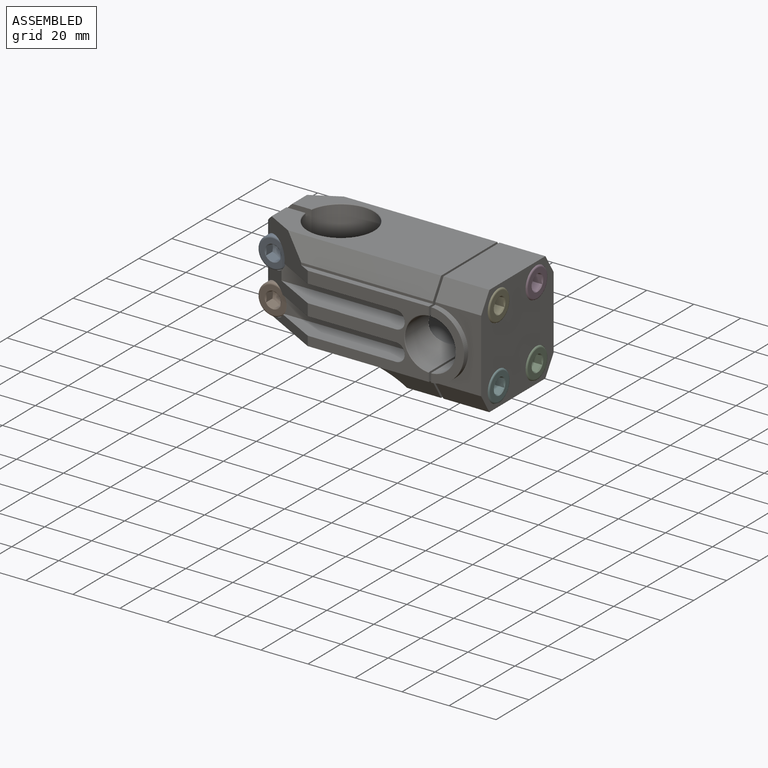
[diagram: assembled view]
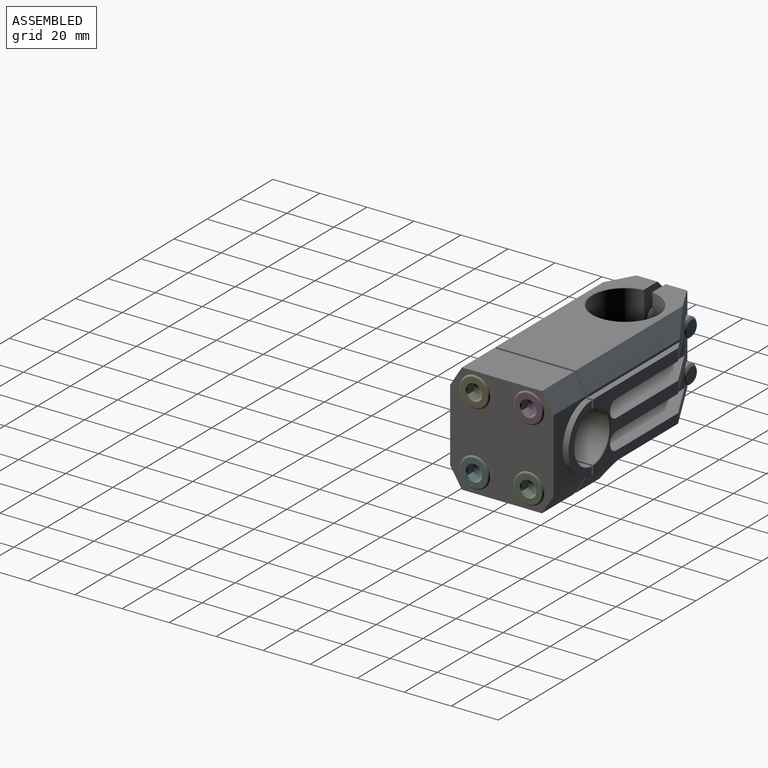
[diagram: assembled view, second angle]
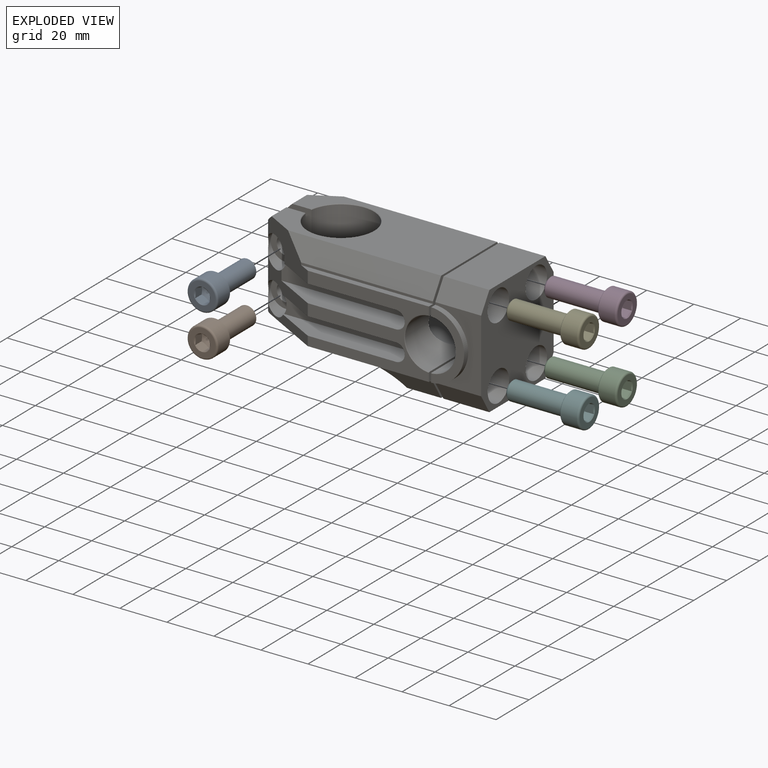
[diagram: exploded view]
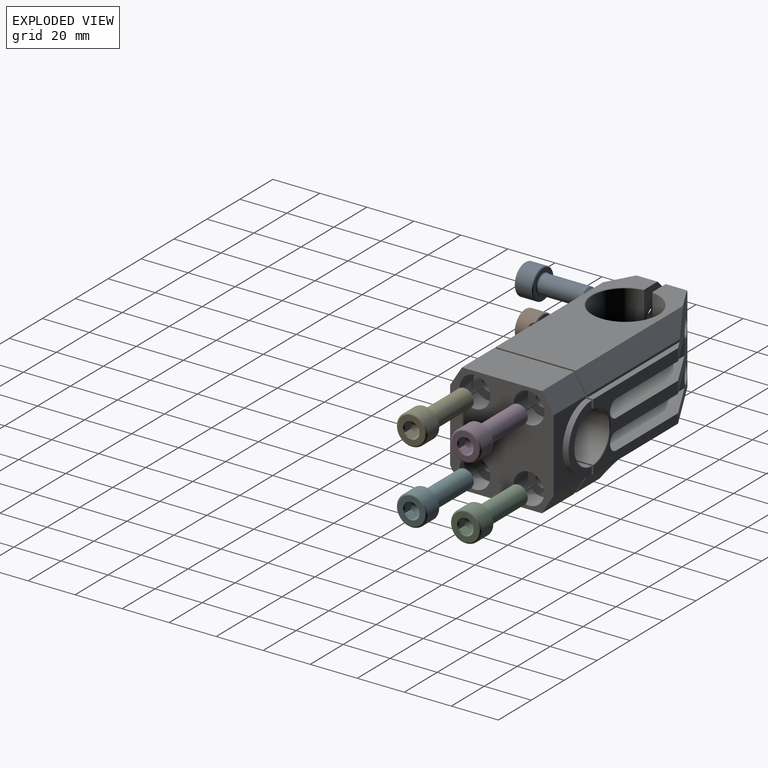
[diagram: exploded view, second angle]
FCSTD DOCUMENT  (FreeCAD 1.0R39285 (Git))
Label: tutorial
License: All rights reserved
LicenseURL: https://en.wikipedia.org/wiki/All_rights_reserved
objects: Sketcher::SketchObject×11, PartDesign::Pocket×9, App::Link×7, App::FeaturePython×7, PartDesign::Pad×2, PartDesign::Chamfer×2, PartDesign::Hole×2, Part::FeaturePython×2, App::VarSet×1, PartDesign::Mirrored×1, PartDesign::Body×1, App::DocumentObjectGroup×1, Assembly::JointGroup×1, Assembly::AssemblyObject×1
note: 72 computed .brp shape members not serialized (recipe doc carries the construction recipe); baked Part::Feature solids carry a one-line shape summary decoded from their .brp

FEATURE [Sketcher::SketchObject] Sketch
  ArcFitTolerance = 1e-06
  AttachmentSupport = -> [XZ_Plane]
  FullyConstrained = true
  MakeInternals = false
  MapMode = 5
  Placement = pos=(0,0,0) rot=(1,0,0;1.5708rad)
  expr: Constraints[18] = VarSet.Size
  expr: Constraints[19] = VarSet.Size + 20 mm
  sketch-geometry (7):
    g0: Circle CenterX=55 CenterY=0 CenterZ=0 NormalX=0 NormalY=0 NormalZ=1 AngleXU=0 Radius=10.75
    g1: LineSegment StartX=0 StartY=23.5 StartZ=0 EndX=75 EndY=23.5 EndZ=0
    g2: LineSegment StartX=75 StartY=23.5 StartZ=0 EndX=75 EndY=-23.5 EndZ=0
    g3: LineSegment StartX=75 StartY=-23.5 StartZ=0 EndX=0 EndY=-23.5 EndZ=0
    g4: LineSegment StartX=0 StartY=-23.5 StartZ=0 EndX=-27 EndY=-23.5 EndZ=0
    g5: LineSegment StartX=-27 StartY=-23.5 StartZ=0 EndX=-27 EndY=23.5 EndZ=0
    g6: LineSegment StartX=-27 StartY=23.5 StartZ=0 EndX=0 EndY=23.5 EndZ=0
  constraints (20):
    c: Diameter(g0) = 21.5
    c: PointOnObject(g0,g-1)
    c: PointOnObject(g1,g-2)
    c: Horizontal(g1)
    c: Coincident(g1,g2)
    c: Coincident(g2,g3)
    c: PointOnObject(g3,g-2)
    c: Horizontal(g3)
    c: Coincident(g3,g4)
    c: Horizontal(g4)
    c: Coincident(g4,g5)
    c: Vertical(g5)
    c: Coincident(g5,g6)
    c: Coincident(g6,g1)
    c: Horizontal(g6)
    c: Symmetric(g1,g2,g-1)
    c: DistanceY(g2,g2) = 47
    c: DistanceX(g6,g6) = 27
    c: DistanceX(g-1,g0) = 55
    c: Distance(g-2,g2) = 75
FEATURE [App::VarSet] VarSet
  Size = 55
FEATURE [PartDesign::Pad] Pad
  Direction = (0,-1,2e-16)
  Length = 22
  Length2 = 10
  Placement = pos=(0,0,0) rot=(1,0,0;1.5708rad)
  Profile = -> Sketch
  ReferenceAxis = -> Sketch [N_Axis]
  Refine = true
  Suppressed = false
  Type = 0
FEATURE [PartDesign::Chamfer] Chamfer
  Angle = 45
  Base = -> Pad [Edge14,Edge15]
  BaseFeature = -> Pad
  ChamferType = 1
  FlipDirection = false
  Placement = pos=(0,0,0) rot=(1,0,0;1.5708rad)
  Refine = true
  Size = 8
  Size2 = 5
  SupportTransform = false
  Suppressed = false
  UseAllEdges = false
FEATURE [Sketcher::SketchObject] Sketch001
  ArcFitTolerance = 1e-06
  AttachmentSupport = -> [Chamfer]
  ExternalGeometry = -> [Chamfer]
  FullyConstrained = true
  MakeInternals = false
  MapMode = 5
  Placement = pos=(0,-22,0) rot=(1,0,0;1.5708rad)
  sketch-geometry (5):
    g0: ArcOfCircle CenterX=55 CenterY=4.9e-15 CenterZ=0 NormalX=0 NormalY=0 NormalZ=1 AngleXU=0 Radius=14.5 StartAngle=4.71239 EndAngle=7.85398
    g1: LineSegment StartX=55 StartY=14.5 StartZ=0 EndX=-27 EndY=14.5 EndZ=0
    g2: LineSegment StartX=55 StartY=-14.5 StartZ=0 EndX=-27 EndY=-14.5 EndZ=0
    g3: LineSegment StartX=-27 StartY=14.5 StartZ=0 EndX=-27 EndY=-14.5 EndZ=0
    g4: Circle CenterX=55 CenterY=4.9e-15 CenterZ=0 NormalX=0 NormalY=0 NormalZ=1 AngleXU=0 Radius=10.75
  constraints (14):
    c: Coincident(g0,g-4)
    c: Vertical(g0,g0)
    c: Vertical(g0,g0)
    c: Radius(g0) = 14.5
    c: Coincident(g1,g0)
    c: PointOnObject(g1,g-3)
    c: Horizontal(g1)
    c: Coincident(g2,g0)
    c: PointOnObject(g2,g-3)
    c: Horizontal(g2)
    c: Coincident(g3,g1)
    c: Coincident(g3,g2)
    c: Coincident(g4,g0)
    c: Equal(g-4,g4)
FEATURE [PartDesign::Pad] Pad001
  BaseFeature = -> Chamfer
  Direction = (0,-1,2e-16)
  Length = 2.5
  Length2 = 10
  Placement = pos=(0,0,0) rot=(1,0,0;1.5708rad)
  Profile = -> Sketch001
  ReferenceAxis = -> Sketch001 [N_Axis]
  Refine = true
  Suppressed = false
  Type = 0
FEATURE [Sketcher::SketchObject] Sketch002
  ArcFitTolerance = 1e-06
  AttachmentSupport = -> [Pad001]
  ExternalGeometry = -> [Pad001]
  FullyConstrained = true
  MakeInternals = false
  MapMode = 5
  Placement = pos=(0,-24.5,6e-15) rot=(1,0,0;1.5708rad)
  expr: Constraints[16] = VarSet.Size - 14.5 mm
  sketch-geometry (8):
    g0: LineSegment StartX=-27 StartY=9.5 StartZ=0 EndX=-27 EndY=2 EndZ=0
    g1: LineSegment StartX=-27 StartY=2 StartZ=0 EndX=40.5 EndY=2 EndZ=0
    g2: LineSegment StartX=40.5 StartY=9.5 StartZ=0 EndX=-27 EndY=9.5 EndZ=0
    g3: LineSegment StartX=-27 StartY=-3 StartZ=0 EndX=-27 EndY=-10.5 EndZ=0
    g4: LineSegment StartX=-27 StartY=-10.5 StartZ=0 EndX=40.5 EndY=-10.5 EndZ=0
    g5: LineSegment StartX=40.5 StartY=-3 StartZ=0 EndX=-27 EndY=-3 EndZ=0
    g6: ArcOfCircle CenterX=40.5 CenterY=5.75 CenterZ=0 NormalX=0 NormalY=0 NormalZ=1 AngleXU=0 Radius=3.75 StartAngle=4.71239 EndAngle=7.85398
    g7: ArcOfCircle CenterX=40.5 CenterY=-6.75 CenterZ=0 NormalX=0 NormalY=0 NormalZ=1 AngleXU=0 Radius=3.75 StartAngle=4.71239 EndAngle=7.85398
  constraints (23):
    c: Coincident(g0,g1)
    c: Coincident(g2,g0)
    c: Vertical(g0)
    c: Horizontal(g1)
    c: Horizontal(g2)
    c: PointOnObject(g0,g-3)
    c: Coincident(g3,g4)
    c: Coincident(g5,g3)
    c: Vertical(g3)
    c: Horizontal(g4)
    c: Horizontal(g5)
    c: PointOnObject(g3,g-3)
    c: Tangent(g6,g2) = -1.5708
    c: Tangent(g6,g1) = -1.5708
    c: Distance(g1,g2) = 7.5
    c: Distance(g-1,g1) = 2
    c: DistanceX(g-1,g6) = 40.5
    c: Vertical(g6,g5)
    c: Vertical(g5,g4)
    c: Equal(g3,g0)
    c: Distance(g-1,g5) = 3
    c: Coincident(g7,g4)
    c: Tangent(g7,g5) = -1.5708
FEATURE [PartDesign::Pocket] Pocket
  BaseFeature = -> Pad001
  Direction = (0,1,-2e-16)
  Length = 10
  Length2 = 5
  Placement = pos=(0,0,0) rot=(1,0,0;1.5708rad)
  Profile = -> Sketch002
  ReferenceAxis = -> Sketch002 [N_Axis]
  Refine = true
  Suppressed = false
  Type = 0
FEATURE [Sketcher::SketchObject] Sketch003
  ArcFitTolerance = 1e-06
  AttachmentSupport = -> [Pocket]
  ExternalGeometry = -> [Pocket]
  FullyConstrained = true
  MakeInternals = false
  MapMode = 5
  Placement = pos=(0,-22,0) rot=(1,0,0;1.5708rad)
  expr: Constraints[7] = VarSet.Size - 15 mm
  sketch-geometry (5):
    g0: LineSegment StartX=-27 StartY=-23.5 StartZ=0 EndX=-27 EndY=-14.5 EndZ=0
    g1: LineSegment StartX=-27 StartY=-23.5 StartZ=0 EndX=0 EndY=-23.5 EndZ=0
    g2: LineSegment StartX=0 StartY=-23.5 StartZ=0 EndX=40 EndY=-23.5 EndZ=0
    g3: LineSegment StartX=-27 StartY=-14.5 StartZ=0 EndX=23.2967 EndY=-14.5 EndZ=0
    g4: ArcOfCircle CenterX=23.2967 CenterY=-34.5 CenterZ=0 NormalX=0 NormalY=0 NormalZ=1 AngleXU=0 Radius=20 StartAngle=0.582364 EndAngle=1.5708
  constraints (13):
    c: Coincident(g-4,g0)
    c: Coincident(g0,g-5)
    c: Coincident(g0,g1)
    c: PointOnObject(g1,g-4)
    c: Coincident(g1,g2)
    c: PointOnObject(g2,g-4)
    c: PointOnObject(g1,g-2)
    c: DistanceX(g2,g2) = 40
    c: Coincident(g3,g0)
    c: PointOnObject(g3,g-5)
    c: Coincident(g4,g2)
    c: Tangent(g4,g3) = 1.5708
    c: Radius(g4) = 20
FEATURE [PartDesign::Pocket] Pocket001
  BaseFeature = -> Pocket
  Direction = (0,1,-2e-16)
  Length = 5
  Length2 = 5
  Placement = pos=(0,0,0) rot=(1,0,0;1.5708rad)
  Profile = -> Sketch003
  ReferenceAxis = -> Sketch003 [N_Axis]
  Refine = true
  Suppressed = false
  Type = 1
FEATURE [Sketcher::SketchObject] Sketch004
  ArcFitTolerance = 1e-06
  AttachmentSupport = -> [Pocket001]
  ExternalGeometry = -> [Pocket001]
  FullyConstrained = true
  MakeInternals = false
  MapMode = 5
  Placement = pos=(0,6.2e-15,23.5) rot=(0,0,1;3.14159rad)
  sketch-geometry (10):
    g0: LineSegment StartX=-3 StartY=24.5 StartZ=0 EndX=27 EndY=24.5 EndZ=0
    g1: LineSegment StartX=27 StartY=24.5 StartZ=0 EndX=27 EndY=1.75 EndZ=0
    g2: LineSegment StartX=-3 StartY=24.5 StartZ=0 EndX=23 EndY=10.2 EndZ=0
    g3: LineSegment [constr] StartX=23 StartY=10.2 StartZ=0 EndX=27 EndY=8 EndZ=0
    g4: Circle [constr] CenterX=23 CenterY=10.2 CenterZ=0 NormalX=0 NormalY=0 NormalZ=1 AngleXU=0 Radius=1
    g5: Circle [constr] CenterX=27 CenterY=8 CenterZ=0 NormalX=0 NormalY=0 NormalZ=1 AngleXU=0 Radius=1
    g6: Circle [constr] CenterX=27 CenterY=1.75 CenterZ=0 NormalX=0 NormalY=0 NormalZ=1 AngleXU=0 Radius=1
    g7: BSplineCurve PolesCount=3 KnotsCount=2 Degree=2 IsPeriodic=0
    g8: GeomPoint [constr] X=23 Y=10.2 Z=0
    g9: GeomPoint [constr] X=27 Y=1.75 Z=0
  constraints (23):
    c: PointOnObject(g0,g-3)
    c: Coincident(g0,g-4)
    c: Coincident(g0,g1)
    c: PointOnObject(g1,g-6)
    c: DistanceY(g-1,g1) = 1.75
    c: DistanceX(g0,g-1) = 3
    c: Coincident(g0,g2)
    c: Coincident(g2,g3)
    c: PointOnObject(g3,g1)
    c: Parallel(g2,g3)
    c: DistanceX(g-1,g2) = 23
    c: DistanceY(g-1,g3) = 8
    c: Weight(g4) = 1
    c: Equal(g4,g5)
    c: Equal(g4,g6)
    c: InternalAlignment(g4,g7)
    c: InternalAlignment(g5,g7)
    c: InternalAlignment(g6,g7)
    c: InternalAlignment(g8,g7)
    c: InternalAlignment(g9,g7)
    c: Coincident(g4,g2)
    c: Coincident(g6,g1)
    c: Coincident(g5,g3)
FEATURE [PartDesign::Pocket] Pocket002
  BaseFeature = -> Pocket001
  Direction = (0,0,-1)
  Length = 5
  Length2 = 5
  Placement = pos=(0,0,0) rot=(1,0,0;1.5708rad)
  Profile = -> Sketch004
  ReferenceAxis = -> Sketch004 [N_Axis]
  Refine = true
  Suppressed = false
  Type = 1
FEATURE [PartDesign::Mirrored] Mirrored
  BaseFeature = -> Pocket002
  MirrorPlane = -> XZ_Plane
  Placement = pos=(0,0,0) rot=(1,0,0;1.5708rad)
  Refine = true
  Suppressed = false
  TransformMode = 1
FEATURE [Sketcher::SketchObject] Sketch005
  ArcFitTolerance = 1e-06
  AttachmentSupport = -> [Mirrored]
  ExternalGeometry = -> [Mirrored]
  FullyConstrained = true
  MakeInternals = false
  MapMode = 5
  Placement = pos=(0,-5.2e-15,23.5) rot=(0,0,1;3.14159rad)
  sketch-geometry (4):
    g0: ArcOfCircle CenterX=0 CenterY=0 CenterZ=0 NormalX=0 NormalY=0 NormalZ=1 AngleXU=0 Radius=14 StartAngle=0.125328 EndAngle=6.15786
    g1: LineSegment StartX=27 StartY=1.75 StartZ=0 EndX=13.8902 EndY=1.75 EndZ=0
    g2: LineSegment StartX=27 StartY=-1.75 StartZ=0 EndX=13.8902 EndY=-1.75 EndZ=0
    g3: LineSegment StartX=27 StartY=1.75 StartZ=0 EndX=27 EndY=-1.75 EndZ=0
  constraints (10):
    c: Coincident(g0,g-1)
    c: Diameter(g0) = 28
    c: Coincident(g1,g-3)
    c: Horizontal(g1)
    c: Coincident(g2,g-3)
    c: Horizontal(g2)
    c: Coincident(g3,g1)
    c: Coincident(g3,g2)
    c: Coincident(g0,g2)
    c: Coincident(g0,g1)
FEATURE [PartDesign::Pocket] Pocket003
  BaseFeature = -> Mirrored
  Direction = (0,0,-1)
  Length = 5
  Length2 = 5
  Placement = pos=(0,0,0) rot=(1,0,0;1.5708rad)
  Profile = -> Sketch005
  ReferenceAxis = -> Sketch005 [N_Axis]
  Refine = true
  Suppressed = false
  Type = 1
FEATURE [Sketcher::SketchObject] Sketch006
  ArcFitTolerance = 1e-06
  AttachmentSupport = -> [XZ_Plane]
  ExternalGeometry = -> [Pocket003]
  FullyConstrained = true
  MakeInternals = false
  MapMode = 5
  Placement = pos=(0,0,0) rot=(1,0,0;1.5708rad)
  sketch-geometry (3):
    g0: LineSegment StartX=-27 StartY=18.5 StartZ=0 EndX=-27 EndY=23.5 EndZ=0
    g1: LineSegment StartX=-27 StartY=23.5 StartZ=0 EndX=-22 EndY=23.5 EndZ=0
    g2: LineSegment StartX=-22 StartY=23.5 StartZ=0 EndX=-27 EndY=18.5 EndZ=0
  constraints (8):
    c: PointOnObject(g0,g-3)
    c: Coincident(g0,g-4)
    c: Coincident(g0,g1)
    c: PointOnObject(g1,g-4)
    c: Coincident(g1,g2)
    c: Coincident(g2,g0)
    c: DistanceX(g1,g1) = 5
    c: DistanceY(g0,g0) = 5
FEATURE [PartDesign::Pocket] Pocket004
  BaseFeature = -> Pocket003
  Direction = (0,1,-2e-16)
  Length = 5
  Length2 = 5
  Midplane = true
  Placement = pos=(0,0,0) rot=(1,0,0;1.5708rad)
  Profile = -> Sketch006
  ReferenceAxis = -> Sketch006 [N_Axis]
  Refine = true
  Suppressed = false
  Type = 1
FEATURE [Sketcher::SketchObject] Sketch007
  ArcFitTolerance = 1e-06
  AttachmentSupport = -> [Pocket004]
  FullyConstrained = true
  MakeInternals = false
  MapMode = 5
  Placement = pos=(75,0,0) rot=(0.707107,0,0.707107;3.14159rad)
  sketch-geometry (4):
    g0: Circle CenterX=15.5 CenterY=11.5 CenterZ=0 NormalX=0 NormalY=0 NormalZ=1 AngleXU=0 Radius=6.5
    g1: Circle CenterX=15.5 CenterY=-11.5 CenterZ=0 NormalX=0 NormalY=0 NormalZ=1 AngleXU=0 Radius=6.5
    g2: Circle CenterX=-15.5 CenterY=-11.5 CenterZ=0 NormalX=0 NormalY=0 NormalZ=1 AngleXU=0 Radius=6.5
    g3: Circle CenterX=-15.5 CenterY=11.5 CenterZ=0 NormalX=0 NormalY=0 NormalZ=1 AngleXU=0 Radius=6.5
  constraints (10):
    c: Vertical(g3,g2)
    c: Horizontal(g3,g0)
    c: Symmetric(g2,g1,g-2)
    c: Symmetric(g0,g1,g-1)
    c: DistanceY(g1,g0) = 23
    c: DistanceX(g2,g1) = 31
    c: Equal(g3,g0)
    c: Equal(g0,g1)
    c: Equal(g1,g2)
    c: Diameter(g1) = 13
FEATURE [PartDesign::Pocket] Pocket005
  BaseFeature = -> Pocket004
  Direction = (-1,0,2e-16)
  Length = 8.5
  Length2 = 5
  Placement = pos=(0,0,0) rot=(1,0,0;1.5708rad)
  Profile = -> Sketch007
  ReferenceAxis = -> Sketch007 [N_Axis]
  Refine = true
  Suppressed = false
  Type = 0
FEATURE [PartDesign::Hole] Hole
  BaseFeature = -> Pocket005
  CustomThreadClearance = 0
  Depth = 13
  DepthType = 0
  Diameter = 6
  DrillForDepth = false
  DrillPoint = 1
  DrillPointAngle = 118
  HoleCutCountersinkAngle = 90
  HoleCutCustomValues = false
  HoleCutDepth = 0
  HoleCutDiameter = 6.1
  HoleCutType = 0
  ModelThread = false
  Placement = pos=(0,0,0) rot=(1,0,0;1.5708rad)
  Profile = -> Pocket005 [Face49,Face47,Face46,Face48]
  Refine = true
  Suppressed = false
  Tapered = false
  TaperedAngle = 90
  ThreadClass = 0
  ThreadDepth = 13
  ThreadDepthType = 0
  ThreadDirection = 0
  ThreadFit = 0
  ThreadSize = 0
  ThreadType = 0
  Threaded = false
  UseCustomThreadClearance = false
FEATURE [Sketcher::SketchObject] Sketch008
  ArcFitTolerance = 1e-06
  AttachmentSupport = -> [Hole]
  FullyConstrained = true
  MakeInternals = false
  MapMode = 5
  Placement = pos=(0,-14.5,4.8e-15) rot=(1,0,0;1.5708rad)
  sketch-geometry (2):
    g0: Circle CenterX=-19.5 CenterY=11 CenterZ=0 NormalX=0 NormalY=0 NormalZ=1 AngleXU=0 Radius=6.5
    g1: Circle CenterX=-19.5 CenterY=-7 CenterZ=0 NormalX=0 NormalY=0 NormalZ=1 AngleXU=0 Radius=6.5
  constraints (6):
    c: Vertical(g1,g0)
    c: Equal(g0,g1)
    c: DistanceY(g1,g-1) = 7
    c: DistanceY(g-1,g0) = 11
    c: DistanceX(g0,g-1) = 19.5
    c: Diameter(g0) = 13
FEATURE [PartDesign::Pocket] Pocket006
  BaseFeature = -> Hole
  Direction = (0,1,-2e-16)
  Length = 9
  Length2 = 7
  Placement = pos=(0,0,0) rot=(1,0,0;1.5708rad)
  Profile = -> Sketch008
  ReferenceAxis = -> Sketch008 [N_Axis]
  Refine = true
  Suppressed = false
  Type = 4
FEATURE [PartDesign::Hole] Hole001
  BaseFeature = -> Pocket006
  CustomThreadClearance = 0
  Depth = 25
  DepthType = 0
  Diameter = 8
  DrillForDepth = false
  DrillPoint = 1
  DrillPointAngle = 118
  HoleCutCountersinkAngle = 90
  HoleCutCustomValues = false
  HoleCutDepth = 0
  HoleCutDiameter = 6.1
  HoleCutType = 0
  ModelThread = false
  Placement = pos=(0,0,0) rot=(1,0,0;1.5708rad)
  Profile = -> Pocket006 [Face33,Face55]
  Refine = true
  Suppressed = false
  Tapered = false
  TaperedAngle = 90
  ThreadClass = 0
  ThreadDepth = 25
  ThreadDepthType = 0
  ThreadDirection = 0
  ThreadFit = 0
  ThreadSize = 0
  ThreadType = 0
  Threaded = false
  UseCustomThreadClearance = false
FEATURE [Sketcher::SketchObject] Sketch009
  ArcFitTolerance = 1e-06
  AttachmentSupport = -> [XZ_Plane]
  ExternalGeometry = -> [Hole001]
  FullyConstrained = true
  MakeInternals = false
  MapMode = 5
  Placement = pos=(0,0,0) rot=(1,0,0;1.5708rad)
  expr: Constraints[11] = VarSet.Size + 0.5 mm
  expr: Constraints[9] = VarSet.Size - 0.5 mm
  sketch-geometry (4):
    g0: LineSegment StartX=54.5 StartY=23.5 StartZ=0 EndX=54.5 EndY=-23.5 EndZ=0
    g1: LineSegment StartX=55.5 StartY=23.5 StartZ=0 EndX=54.5 EndY=23.5 EndZ=0
    g2: LineSegment StartX=54.5 StartY=-23.5 StartZ=0 EndX=55.5 EndY=-23.5 EndZ=0
    g3: LineSegment StartX=55.5 StartY=-23.5 StartZ=0 EndX=55.5 EndY=23.5 EndZ=0
  constraints (12):
    c: Coincident(g1,g0)
    c: Vertical(g0)
    c: Horizontal(g1)
    c: PointOnObject(g0,g-3)
    c: Coincident(g2,g0)
    c: PointOnObject(g2,g-4)
    c: Horizontal(g2)
    c: Coincident(g3,g2)
    c: Coincident(g3,g1)
    c: DistanceX(g-1,g0) = 54.5
    c: Vertical(g1,g2)
    c: DistanceX(g-1,g2) = 55.5
FEATURE [PartDesign::Pocket] Pocket007
  BaseFeature = -> Hole001
  Direction = (0,1,-2e-16)
  Length = 5
  Length2 = 5
  Midplane = true
  Placement = pos=(0,0,0) rot=(1,0,0;1.5708rad)
  Profile = -> Sketch009
  ReferenceAxis = -> Sketch009 [N_Axis]
  Refine = true
  Suppressed = false
  Type = 1
FEATURE [Sketcher::SketchObject] Sketch010
  ArcFitTolerance = 1e-06
  AttachmentSupport = -> [YZ_Plane]
  FullyConstrained = true
  MakeInternals = false
  MapMode = 5
  Placement = pos=(0,0,0) rot=(0.57735,0.57735,0.57735;2.0944rad)
  sketch-geometry (1):
    g0: Circle CenterX=0 CenterY=0 CenterZ=0 NormalX=0 NormalY=0 NormalZ=1 AngleXU=0 Radius=10
  constraints (2):
    c: Diameter(g0) = 20
    c: Coincident(g0,g-1)
FEATURE [PartDesign::Pocket] Pocket008
  BaseFeature = -> Pocket007
  Direction = (-1,0,0)
  Length = 0
  Length2 = 5
  Placement = pos=(0,0,0) rot=(1,0,0;1.5708rad)
  Profile = -> Sketch010
  ReferenceAxis = -> Sketch010 [N_Axis]
  Refine = true
  Suppressed = false
  Type = 3
  UpToFace = -> Pocket007 [Face18]
FEATURE [PartDesign::Chamfer] Chamfer001
  Angle = 45
  Base = -> Pocket008 [Edge226,Edge16,Edge227,Edge50,Edge95,Edge222,Edge223]
  BaseFeature = -> Pocket008
  ChamferType = 0
  FlipDirection = false
  Placement = pos=(0,0,0) rot=(1,0,0;1.5708rad)
  Refine = true
  Size = 0.2
  Size2 = 1
  SupportTransform = false
  Suppressed = false
  UseAllEdges = false
FEATURE [PartDesign::Body] Body  label="Stem"
  AllowCompound = true
  Group = -> [Sketch,Pad,Chamfer,Sketch001,Pad001,Sketch002,Pocket,Sketch003,Pocket001,Sketch004,Pocket002,Mirrored,Sketch005,Pocket003,Sketch006,Pocket004,Sketch007,Pocket005,Hole,Sketch008,Pocket006,Hole001,Sketch009,Pocket007,Sketch010,Pocket008,Chamfer001]
  Origin = -> Origin
  Tip = -> Chamfer001
FEATURE [Part::FeaturePython] Screw  label="M8x25-Screw"  # WARN: FeaturePython — macro-defined, semantics opaque (R4)
  Diameter = 8
  Invert = false
  LeftHanded = false
  Length = 17
  LengthCustom = 25
  MatchOuter = false
  OffsetAngle = 0
  Thread = false
  Type = 75
FEATURE [App::Link] Stem  label="Stem001"
  LinkedObject = -> Body
FEATURE [App::FeaturePython] GroundedJoint  # Assembly grounded joint (typed FeaturePython)
  ObjectToGround = -> Stem
FEATURE [App::Link] M8x25_Screw  label="M8x25-Screw001"
  LinkPlacement = pos=(67.5,11.5,-15.5) rot=(0.707107,0,0.707107;3.14159rad)
  LinkedObject = -> Screw
  Placement = pos=(67.5,11.5,-15.5) rot=(0.707107,0,0.707107;3.14159rad)
FEATURE [App::FeaturePython] Joint  label="Fixed"  # Assembly joint (typed FeaturePython)
  Activated = true
  AngleMax = 0
  AngleMin = 0
  Detach1 = false
  Detach2 = false
  Distance = 0
  Distance2 = 0
  EnableAngleMax = false
  EnableAngleMin = false
  EnableLengthMax = false
  EnableLengthMin = false
  JointType = 0 (Fixed)
  LengthMax = 0
  LengthMin = 0
  Offset2 = pos=(0,0,1) rot=(0,0,1;0rad)
  Placement2 = pos=(67.5,11.5,-15.5) rot=(0.707107,0,0.707107;3.14159rad)
  Reference1 = -> Assembly [M8x25_Screw.Edge26,M8x25_Screw.Edge26]
  Reference2 = -> Assembly [Stem.Chamfer001.Edge76,Stem.Chamfer001.Edge76]
FEATURE [App::Link] M8x25_Screw001  label="M8x25-Screw002"
  LinkPlacement = pos=(67.5,11.5,15.5) rot=(0.707107,0,0.707107;3.14159rad)
  LinkedObject = -> Screw
  Placement = pos=(67.5,11.5,15.5) rot=(0.707107,0,0.707107;3.14159rad)
FEATURE [App::Link] M8x25_Screw002  label="M8x25-Screw003"
  LinkPlacement = pos=(67.5,-11.5,15.5) rot=(0.707107,0,0.707107;3.14159rad)
  LinkedObject = -> Screw
  Placement = pos=(67.5,-11.5,15.5) rot=(0.707107,0,0.707107;3.14159rad)
FEATURE [App::Link] M8x25_Screw003  label="M8x25-Screw004"
  LinkPlacement = pos=(67.5,-11.5,-15.5) rot=(0.707107,0,0.707107;3.14159rad)
  LinkedObject = -> Screw
  Placement = pos=(67.5,-11.5,-15.5) rot=(0.707107,0,0.707107;3.14159rad)
FEATURE [App::FeaturePython] Joint001  label="Fixed001"  # Assembly joint (typed FeaturePython)
  Activated = true
  AngleMax = 0
  AngleMin = 0
  Detach1 = false
  Detach2 = false
  Distance = 0
  Distance2 = 0
  EnableAngleMax = false
  EnableAngleMin = false
  EnableLengthMax = false
  EnableLengthMin = false
  JointType = 0 (Fixed)
  LengthMax = 0
  LengthMin = 0
  Offset2 = pos=(0,0,1) rot=(0,0,1;0rad)
  Placement2 = pos=(67.5,11.5,15.5) rot=(0.707107,0,0.707107;3.14159rad)
  Reference1 = -> Assembly [M8x25_Screw001.Edge26,M8x25_Screw001.Edge26]
  Reference2 = -> Assembly [Stem.Chamfer001.Edge67,Stem.Chamfer001.Edge67]
FEATURE [App::FeaturePython] Joint002  label="Fixed002"  # Assembly joint (typed FeaturePython)
  Activated = true
  AngleMax = 0
  AngleMin = 0
  Detach1 = false
  Detach2 = false
  Distance = 0
  Distance2 = 0
  EnableAngleMax = false
  EnableAngleMin = false
  EnableLengthMax = false
  EnableLengthMin = false
  JointType = 0 (Fixed)
  LengthMax = 0
  LengthMin = 0
  Offset2 = pos=(0,0,1) rot=(0,0,1;0rad)
  Placement2 = pos=(67.5,-11.5,15.5) rot=(0.707107,0,0.707107;3.14159rad)
  Reference1 = -> Assembly [M8x25_Screw002.Edge26,M8x25_Screw002.Edge26]
  Reference2 = -> Assembly [Stem.Chamfer001.Edge68,Stem.Chamfer001.Edge68]
FEATURE [App::FeaturePython] Joint003  label="Fixed003"  # Assembly joint (typed FeaturePython)
  Activated = true
  AngleMax = 0
  AngleMin = 0
  Detach1 = false
  Detach2 = false
  Distance = 0
  Distance2 = 0
  EnableAngleMax = false
  EnableAngleMin = false
  EnableLengthMax = false
  EnableLengthMin = false
  JointType = 0 (Fixed)
  LengthMax = 0
  LengthMin = 0
  Offset2 = pos=(0,0,1) rot=(0,0,1;0rad)
  Placement2 = pos=(67.5,-11.5,-15.5) rot=(0.707107,0,0.707107;3.14159rad)
  Reference1 = -> Assembly [M8x25_Screw003.Edge26,M8x25_Screw003.Edge26]
  Reference2 = -> Assembly [Stem.Chamfer001.Edge78,Stem.Chamfer001.Edge78]
FEATURE [Part::FeaturePython] Screw001  label="M8x20-Screw"  # WARN: FeaturePython — macro-defined, semantics opaque (R4)
  Diameter = 8
  Invert = false
  LeftHanded = false
  Length = 17
  LengthCustom = 20
  MatchOuter = false
  OffsetAngle = 0
  Thread = false
  Type = 75
FEATURE [App::DocumentObjectGroup] Group  label="Parts"
  Group = -> [Body,Screw,VarSet,Screw001]
FEATURE [App::Link] M8x15_Screw  label="M8x15-Screw001"
  LinkPlacement = pos=(-19.5,-5.5,11) rot=(0.57735,-0.57735,0.57735;2.0944rad)
  LinkedObject = -> Screw001
  Placement = pos=(-19.5,-5.5,11) rot=(0.57735,-0.57735,0.57735;2.0944rad)
FEATURE [App::Link] M8x15_Screw001  label="M8x15-Screw002"
  LinkPlacement = pos=(-19.5,-5.5,-7) rot=(0.57735,-0.57735,0.57735;2.0944rad)
  LinkedObject = -> Screw001
  Placement = pos=(-19.5,-5.5,-7) rot=(0.57735,-0.57735,0.57735;2.0944rad)
FEATURE [App::FeaturePython] Joint004  label="Fixed004"  # Assembly joint (typed FeaturePython)
  Activated = true
  AngleMax = 0
  AngleMin = 0
  Detach1 = false
  Detach2 = false
  Distance = 0
  Distance2 = 0
  EnableAngleMax = false
  EnableAngleMin = false
  EnableLengthMax = false
  EnableLengthMin = false
  JointType = 0 (Fixed)
  LengthMax = 0
  LengthMin = 0
  Placement1 = pos=(1.8e-15,0,0) rot=(0,0,1;0rad)
  Placement2 = pos=(-19.5,-5.5,11) rot=(0.57735,0.57735,0.57735;4.18879rad)
  Reference1 = -> Assembly [M8x15_Screw.Face13,M8x15_Screw.Face13]
  Reference2 = -> Assembly [Stem.Chamfer001.Face80,Stem.Chamfer001.Face80]
FEATURE [App::FeaturePython] Joint005  label="Fixed005"  # Assembly joint (typed FeaturePython)
  Activated = true
  AngleMax = 0
  AngleMin = 0
  Detach1 = false
  Detach2 = false
  Distance = 0
  Distance2 = 0
  EnableAngleMax = false
  EnableAngleMin = false
  EnableLengthMax = false
  EnableLengthMin = false
  JointType = 0 (Fixed)
  LengthMax = 0
  LengthMin = 0
  Placement1 = pos=(1.8e-15,0,0) rot=(0,0,1;0rad)
  Placement2 = pos=(-19.5,-5.5,-7) rot=(0.57735,0.57735,0.57735;4.18879rad)
  Reference1 = -> Assembly [M8x15_Screw001.Face13,M8x15_Screw001.Face13]
  Reference2 = -> Assembly [Stem.Chamfer001.Face79,Stem.Chamfer001.Face79]
FEATURE [Assembly::JointGroup] Joints
  Group = -> [GroundedJoint,Joint,Joint001,Joint002,Joint003,Joint004,Joint005]
FEATURE [Assembly::AssemblyObject] Assembly
  Group = -> [Joints,Stem,GroundedJoint,M8x25_Screw,Joint,M8x25_Screw001,M8x25_Screw002,M8x25_Screw003,Joint001,Joint002,Joint003,M8x15_Screw,M8x15_Screw001,Joint004,Joint005]
  Origin = -> Origin001
  Type = Assembly
